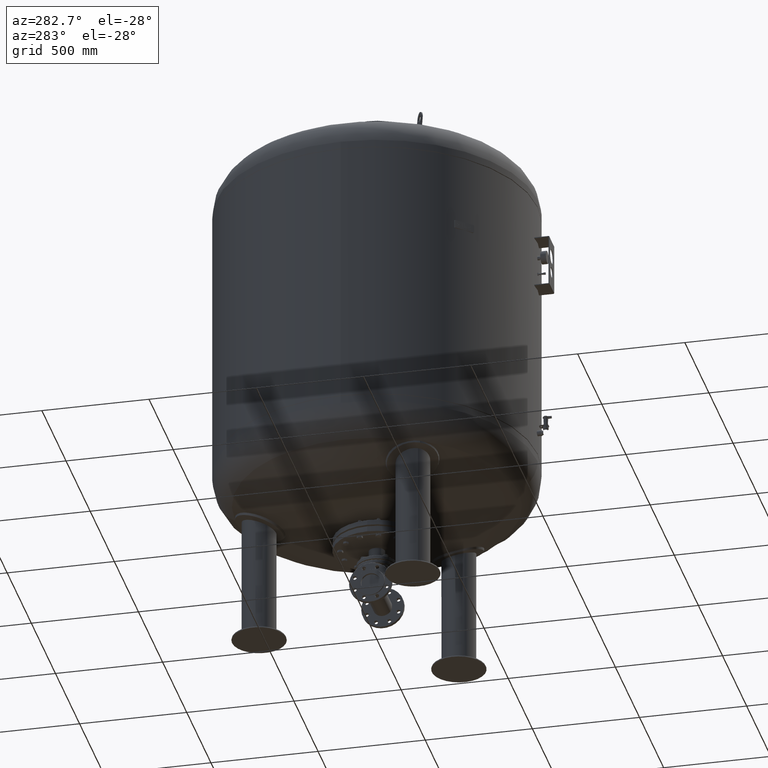
[diagram: clean part render]
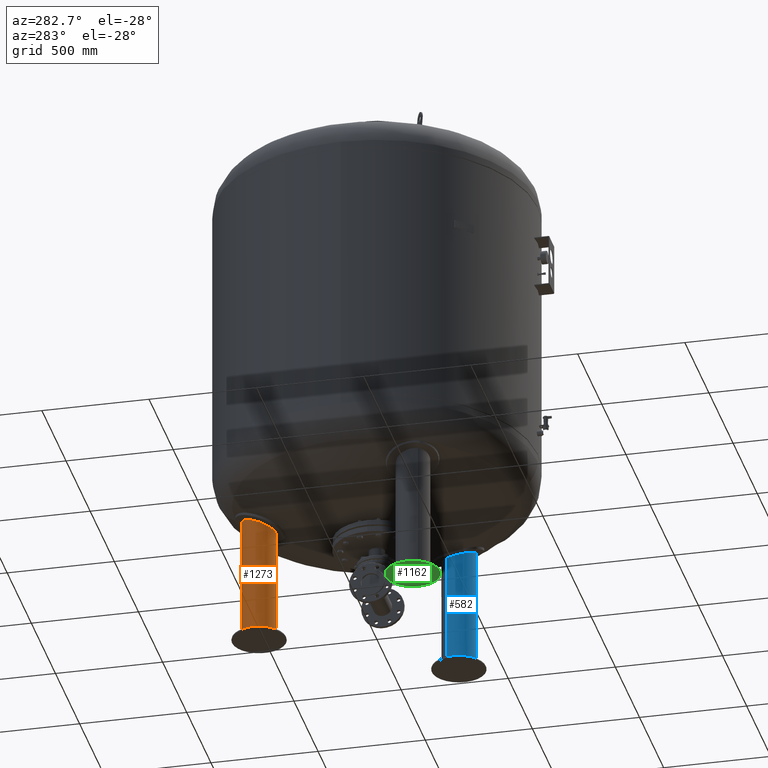
[diagram: same view with three faces highlighted in distinct colors, each labeled with its STEP entity id]
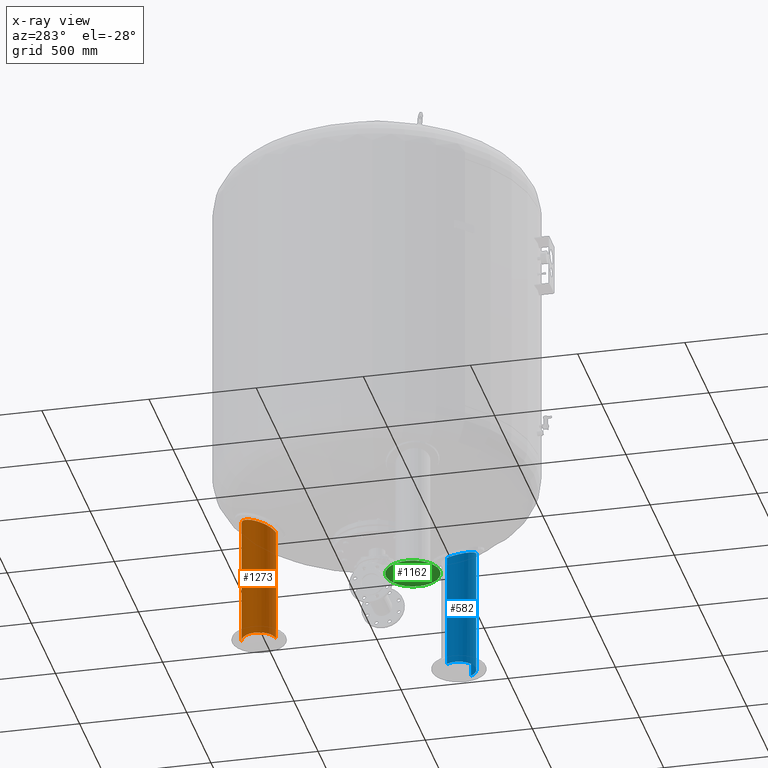
[diagram: x-ray of the same camera — body ghosted, the three highlighted faces saturated]
A machine part, auxiliary view with three faces highlighted in distinct colors.
The next image is the same camera in x-ray (body ghosted, the three faces saturated) — at least one of them is partly hidden behind the body in this view.
Their STEP definitions:

[orange] entity #1273 — the highlighted cylindrical surface (edge-blend (fillet) strip) has radius 79.5 mm, axis along (-0, 0, -1).
#1207=CARTESIAN_POINT('',(2.905276E-015,550.0,15.815585141290533));
#1208=DIRECTION('',(-1.836970E-016,1.124820E-032,-1.0));
#1209=DIRECTION('',(0.0,1.0,0.0));
#1210=AXIS2_PLACEMENT_3D('',#1207,#1208,#1209);
#1211=CYLINDRICAL_SURFACE('',#1210,79.500000000000000);
#1212=CARTESIAN_POINT('',(7.004582E-015,629.500000000000000,11.631170282581067));
#1213=VERTEX_POINT('',#1212);
#1214=CARTESIAN_POINT('',(1.187554E-013,629.500000000000680,619.974328976416250));
#1215=VERTEX_POINT('',#1214);
#1216=CARTESIAN_POINT('',(7.004582E-015,629.500000000000000,11.631170282581067));
#1217=DIRECTION('',(0.0,0.0,1.0));
#1218=VECTOR('',#1217,608.343158693835220);
#1219=LINE('',#1216,#1218);
#1220=EDGE_CURVE('',#1213,#1215,#1219,.T.);
#1221=ORIENTED_EDGE('',*,*,#1220,.F.);
#1222=CARTESIAN_POINT('',(-1.246698E-014,470.500000000000000,11.631170282581067));
#1223=VERTEX_POINT('',#1222);
#1224=CARTESIAN_POINT('',(2.136611E-015,550.0,11.631170282581067));
#1225=DIRECTION('',(0.0,0.0,-1.0));
#1226=DIRECTION('',(0.0,1.0,0.0));
#1227=AXIS2_PLACEMENT_3D('',#1224,#1225,#1226);
#1228=CIRCLE('',#1227,79.500000000000000);
#1229=EDGE_CURVE('',#1223,#1213,#1228,.T.);
#1230=ORIENTED_EDGE('',*,*,#1229,.F.);
#1231=CARTESIAN_POINT('',(8.113575E-014,470.500000000000000,557.801446445446690));
#1232=VERTEX_POINT('',#1231);
#1233=CARTESIAN_POINT('',(-1.246698E-014,470.500000000000000,11.631170282581067));
#1234=DIRECTION('',(0.0,0.0,1.0));
#1235=VECTOR('',#1234,546.170276162865660);
#1236=LINE('',#1233,#1235);
#1237=EDGE_CURVE('',#1223,#1232,#1236,.T.);
#1238=ORIENTED_EDGE('',*,*,#1237,.T.);
#1239=CARTESIAN_POINT('',(-79.496546794574527,549.259022444332230,588.259208461118420));
#1240=VERTEX_POINT('',#1239);
#1241=CARTESIAN_POINT('',(8.113575E-014,470.500000000000000,557.801446445446690));
#1242=CARTESIAN_POINT('',(-8.120663509625699,470.500000000000000,557.801446445446690));
#1243=CARTESIAN_POINT('',(-16.181797699724978,471.744255828588280,558.277369662588170));
#1244=CARTESIAN_POINT('',(-33.164619714983125,477.098435150620050,560.328261777430270));
#1245=CARTESIAN_POINT('',(-41.714366610406444,481.657352020981700,562.075596332598020));
#1246=CARTESIAN_POINT('',(-57.102984846283043,493.777642472443740,566.734659420112730));
#1247=CARTESIAN_POINT('',(-63.659291648246821,501.375090312636700,569.661195647944850));
#1248=CARTESIAN_POINT('',(-73.982822936199739,519.024244692127350,576.486089468713540));
#1249=CARTESIAN_POINT('',(-77.408940630037023,529.089375858457170,580.391859104990320));
#1250=CARTESIAN_POINT('',(-79.232830525971295,542.704310446537310,585.699021239809100));
#1251=CARTESIAN_POINT('',(-79.466003833415044,545.982189128008940,586.978453284904390));
#1252=CARTESIAN_POINT('',(-79.496546794574527,549.259022444332230,588.259208461118420));
#1253=B_SPLINE_CURVE_WITH_KNOTS('',3,(#1241,#1242,#1243,#1244,#1245,#1246,#1247,#1248,#1249,#1250,#1251,#1252),.UNSPECIFIED.,.F.,.U.,(4,2,2,2,2,4),(25.946274642103887,28.391196783303212,31.323094720106891,34.426409319311013,37.777807879739491,38.832927063684018),.UNSPECIFIED.);
#1254=EDGE_CURVE('',#1232,#1240,#1253,.T.);
#1255=ORIENTED_EDGE('',*,*,#1254,.T.);
#1256=CARTESIAN_POINT('',(-79.496546794574527,549.259022444332230,588.259208461118420));
#1257=CARTESIAN_POINT('',(-79.569013932907993,557.033734660012900,591.297966296070060));
#1258=CARTESIAN_POINT('',(-78.500805236188384,564.802503619152730,594.344322088061060));
#1259=CARTESIAN_POINT('',(-73.259584389779818,582.725585721040150,601.394273940897850));
#1260=CARTESIAN_POINT('',(-68.082238002880700,592.519115795239940,605.264897102246320));
#1261=CARTESIAN_POINT('',(-54.397367842830228,608.873445802111750,611.749699955350710));
#1262=CARTESIAN_POINT('',(-46.279319565829439,615.490667371996780,614.383971692484580));
#1263=CARTESIAN_POINT('',(-31.375414450366588,623.319741512061910,617.505471067215810));
#1264=CARTESIAN_POINT('',(-25.415018648142311,625.599309760025790,618.415766111970470));
#1265=CARTESIAN_POINT('',(-12.938638782510697,628.705585890656830,619.656658887407730));
#1266=CARTESIAN_POINT('',(-6.489221034626325,629.499999999999770,619.974328976416020));
#1267=CARTESIAN_POINT('',(1.134724E-013,629.499999999999770,619.974328976416020));
#1268=B_SPLINE_CURVE_WITH_KNOTS('',3,(#1256,#1257,#1258,#1259,#1260,#1261,#1262,#1263,#1264,#1265,#1266,#1267),.UNSPECIFIED.,.F.,.U.,(4,2,2,2,2,4),(38.832927063684018,41.336334230459492,44.806614551580793,48.013896662752792,49.941938919734973,51.888705230122902),.UNSPECIFIED.);
#1269=EDGE_CURVE('',#1240,#1215,#1268,.T.);
#1270=ORIENTED_EDGE('',*,*,#1269,.T.);
#1271=EDGE_LOOP('',(#1221,#1230,#1238,#1255,#1270));
#1272=FACE_OUTER_BOUND('',#1271,.T.);
#1273=ADVANCED_FACE('',(#1272),#1211,.T.);

[blue] entity #582 — the highlighted cylindrical surface (edge-blend (fillet) strip) has radius 79.5 mm, axis along (0, 0, -1).
#172=CARTESIAN_POINT('',(545.162991682303870,-314.750000000000230,11.631170282581067));
#173=VERTEX_POINT('',#172);
#174=CARTESIAN_POINT('',(545.162991682304440,-314.750000000000630,619.974328976416250));
#175=VERTEX_POINT('',#174);
#176=CARTESIAN_POINT('',(545.162991682303870,-314.750000000000230,11.631170282581067));
#177=DIRECTION('',(0.0,0.0,1.0));
#178=VECTOR('',#177,608.343158693835220);
#179=LINE('',#176,#178);
#180=EDGE_CURVE('',#173,#175,#179,.T.);
#182=CARTESIAN_POINT('',(407.464952480578180,-235.250000000000110,11.631170282581067));
#183=VERTEX_POINT('',#182);
#191=CARTESIAN_POINT('',(407.464952480578120,-235.250000000000230,557.801446445446690));
#192=VERTEX_POINT('',#191);
#193=CARTESIAN_POINT('',(407.464952480578180,-235.250000000000110,11.631170282581067));
#194=DIRECTION('',(0.0,0.0,1.0));
#195=VECTOR('',#194,546.170276162865660);
#196=LINE('',#193,#195);
#197=EDGE_CURVE('',#183,#192,#196,.T.);
#279=CARTESIAN_POINT('',(435.923993297311260,-343.475540259406440,588.259208461118190));
#280=VERTEX_POINT('',#279);
#281=CARTESIAN_POINT('',(435.923993297311260,-343.475540259406440,588.259208461118190));
#282=CARTESIAN_POINT('',(428.294244079324470,-338.975168186761380,584.797146556691930));
#283=CARTESIAN_POINT('',(421.432219721340350,-333.208904948055700,581.360502151041940));
#284=CARTESIAN_POINT('',(408.717320989592170,-318.197262877139220,574.174236989335670));
#285=CARTESIAN_POINT('',(403.428779549836460,-308.594560981841940,570.549958778381670));
#286=CARTESIAN_POINT('',(397.284632061759850,-288.348202161642920,564.600364334074580));
#287=CARTESIAN_POINT('',(396.189586487437450,-278.010947247717700,562.252334812652180));
#288=CARTESIAN_POINT('',(398.071116691458940,-257.806862096045730,559.003880738072780));
#289=CARTESIAN_POINT('',(400.811446048780450,-248.180804466063280,558.070588206412370));
#290=CARTESIAN_POINT('',(405.983358000271150,-237.903174880540800,557.818088260262240));
#291=CARTESIAN_POINT('',(406.705844140872670,-236.564814212819300,557.801446445446690));
#292=CARTESIAN_POINT('',(407.464952480578120,-235.250000000000230,557.801446445446690));
#293=B_SPLINE_CURVE_WITH_KNOTS('',3,(#281,#282,#283,#284,#285,#286,#287,#288,#289,#290,#291,#292),.UNSPECIFIED.,.F.,.U.,(4,2,2,2,2,4),(13.058196146459961,15.908544671985489,19.326182717890447,22.493256912797680,25.489178793934588,25.946274642103884),.UNSPECIFIED.);
#294=EDGE_CURVE('',#280,#192,#293,.T.);
#545=CARTESIAN_POINT('',(545.162991682303870,-314.750000000000280,619.974328976416360));
#546=CARTESIAN_POINT('',(540.366890598841110,-323.057090754793310,619.974328976416020));
#547=CARTESIAN_POINT('',(534.131807051763080,-330.386322806354490,619.280247607236110));
#548=CARTESIAN_POINT('',(519.299997618791620,-342.575536920710310,616.585819491894090));
#549=CARTESIAN_POINT('',(510.836973519929190,-347.237482487707440,614.592514188904490));
#550=CARTESIAN_POINT('',(492.270020921124460,-353.538138546992400,609.453155597640030));
#551=CARTESIAN_POINT('',(482.267074518463910,-354.891128663840110,606.286372499794770));
#552=CARTESIAN_POINT('',(461.710332890184650,-353.875417057553650,599.055880090259170));
#553=CARTESIAN_POINT('',(451.315557892037870,-351.203205063835870,594.989155554557560));
#554=CARTESIAN_POINT('',(439.795744250857180,-345.651357521946810,589.995750597807050));
#555=CARTESIAN_POINT('',(437.835763685399060,-344.603189126760750,589.126690109794940));
#556=CARTESIAN_POINT('',(435.923993297311260,-343.475540259406440,588.259208461118190));
#557=B_SPLINE_CURVE_WITH_KNOTS('',3,(#545,#546,#547,#548,#549,#550,#551,#552,#553,#554,#555,#556),.UNSPECIFIED.,.F.,.U.,(4,2,2,2,2,4),(0.0,2.877660650077480,5.813761654146234,8.951189755024860,12.343990246483170,13.058196146459961),.UNSPECIFIED.);
#558=EDGE_CURVE('',#175,#280,#557,.T.);
#564=CARTESIAN_POINT('',(476.313972081441020,-275.000000000000170,15.815585141290533));
#565=DIRECTION('',(9.184851E-017,1.590863E-016,-1.0));
#566=DIRECTION('',(0.866025403784438,-0.500000000000000,0.0));
#567=AXIS2_PLACEMENT_3D('',#564,#565,#566);
#568=CYLINDRICAL_SURFACE('',#567,79.500000000000000);
#569=ORIENTED_EDGE('',*,*,#180,.T.);
#570=ORIENTED_EDGE('',*,*,#558,.T.);
#571=ORIENTED_EDGE('',*,*,#294,.T.);
#572=ORIENTED_EDGE('',*,*,#197,.F.);
#573=CARTESIAN_POINT('',(476.313972081441020,-275.000000000000170,11.631170282581067));
#574=DIRECTION('',(0.0,0.0,-1.000000000000000));
#575=DIRECTION('',(0.866025403784438,-0.500000000000000,0.0));
#576=AXIS2_PLACEMENT_3D('',#573,#574,#575);
#577=CIRCLE('',#576,79.499999999999986);
#578=EDGE_CURVE('',#173,#183,#577,.T.);
#579=ORIENTED_EDGE('',*,*,#578,.F.);
#580=EDGE_LOOP('',(#569,#570,#571,#572,#579));
#581=FACE_OUTER_BOUND('',#580,.T.);
#582=ADVANCED_FACE('',(#581),#568,.T.);

[green] entity #1162 — the highlighted spherical surface has radius 570 mm.
#650=CARTESIAN_POINT('',(-585.702740850056100,-338.155635094881290,14.171372612881115));
#651=VERTEX_POINT('',#650);
#660=CARTESIAN_POINT('',(-366.925203312826400,-211.844364905118480,14.171372612881118));
#661=VERTEX_POINT('',#660);
#662=CARTESIAN_POINT('',(-476.313972081441250,-274.999999999999890,14.171372612881115));
#663=DIRECTION('',(0.0,0.0,-1.0));
#664=DIRECTION('',(-0.866025403784439,-0.499999999999999,0.0));
#665=AXIS2_PLACEMENT_3D('',#662,#663,#664);
#666=CIRCLE('',#665,126.311270189762990);
#667=EDGE_CURVE('',#661,#651,#666,.T.);
#1143=CARTESIAN_POINT('',(-476.313972081441250,-274.999999999999890,14.171372612881115));
#1144=DIRECTION('',(0.0,0.0,-1.0));
#1145=DIRECTION('',(-0.866025403784439,-0.499999999999999,0.0));
#1146=AXIS2_PLACEMENT_3D('',#1143,#1144,#1145);
#1147=CIRCLE('',#1146,126.311270189762990);
#1148=EDGE_CURVE('',#651,#661,#1147,.T.);
#1153=CARTESIAN_POINT('',(-476.313972081441310,-274.999999999999770,570.0));
#1154=DIRECTION('',(-0.499999999999999,0.866025403784439,-1.836970E-016));
#1155=DIRECTION('',(-0.866025403784439,-0.499999999999999,0.0));
#1156=AXIS2_PLACEMENT_3D('',#1153,#1154,#1155);
#1157=SPHERICAL_SURFACE('',#1156,570.0);
#1158=ORIENTED_EDGE('',*,*,#1148,.T.);
#1159=ORIENTED_EDGE('',*,*,#667,.T.);
#1160=EDGE_LOOP('',(#1158,#1159));
#1161=FACE_OUTER_BOUND('',#1160,.T.);
#1162=ADVANCED_FACE('',(#1161),#1157,.T.);